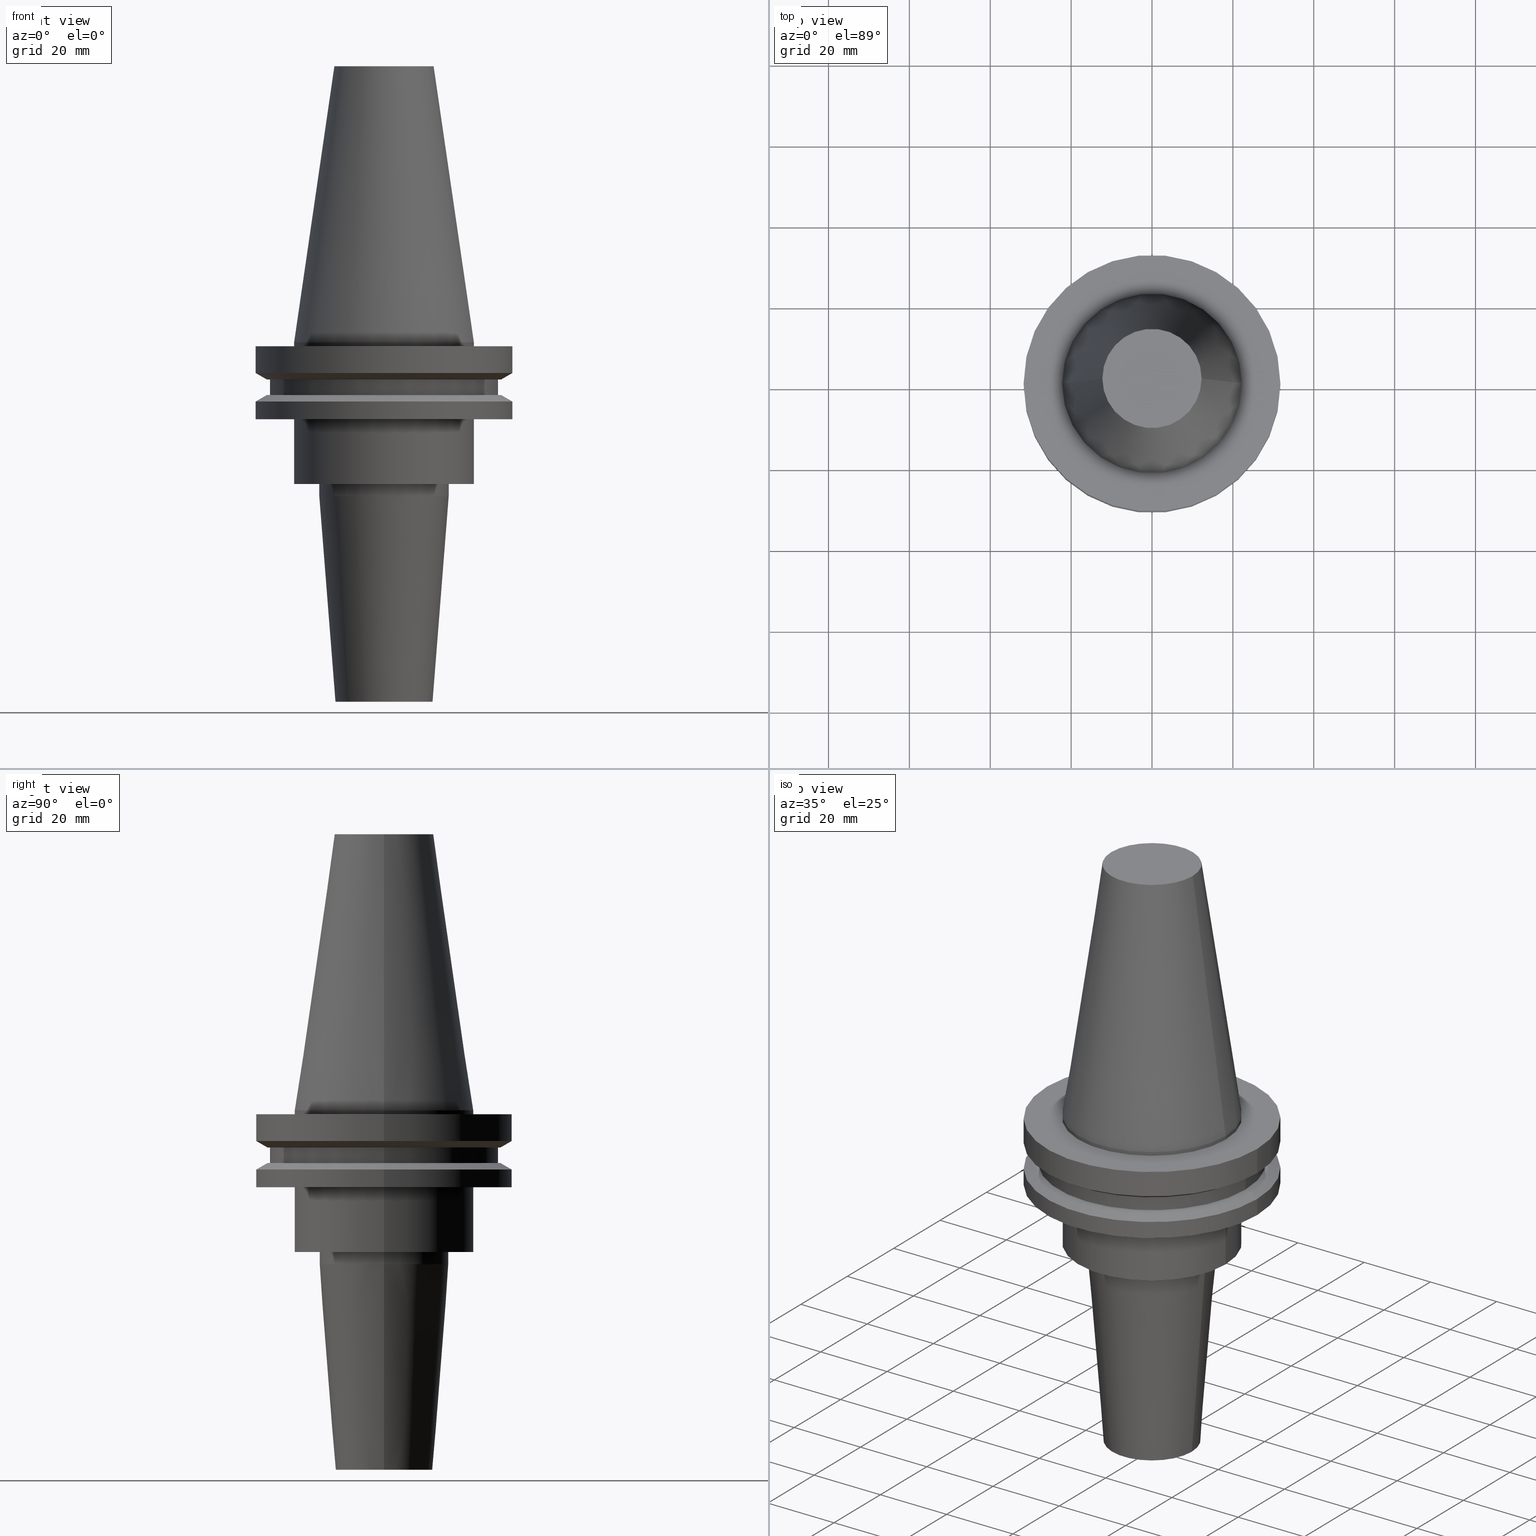
[diagram: canonical four-view strip — front | top / right | iso, engineering-drawing reading convention]
A machine part, canonical four-view strip (front | top / right | iso — engineering-drawing reading convention). The complete STEP part file that produces these views, byte-faithful:
ISO-10303-21;
HEADER;
FILE_DESCRIPTION (( 'STEP AP203' ),
    '1' );
FILE_NAME ('BCV40-SF_375-3_5.STEP',
    '2022-02-23T17:22:03',
    ( '' ),
    ( '' ),
    'SwSTEP 2.0',
    'SolidWorks 2021',
    '' );
FILE_SCHEMA (( 'CONFIG_CONTROL_DESIGN' ));
ENDSEC;

DATA;
#1 = EDGE_CURVE ( 'NONE', #531, #455, #358, .T. ) ;
#2 = DIRECTION ( 'NONE',  ( -0.000000000000000000, -0.000000000000000000, 1.000000000000000000 ) ) ;
#3 = CARTESIAN_POINT ( 'NONE',  ( -28.97919780457007732, 3.718590885307660666E-15, -9.205000000000005400 ) ) ;
#4 = ORIENTED_EDGE ( 'NONE', *, *, #646, .T. ) ;
#5 = DESIGN_CONTEXT ( 'detailed design', #517, 'design' ) ;
#6 = CARTESIAN_POINT ( 'NONE',  ( 0.000000000000000000, 0.000000000000000000, -57.89999999999999147 ) ) ;
#7 = DIRECTION ( 'NONE',  ( 1.000000000000000000, 0.000000000000000000, 0.000000000000000000 ) ) ;
#8 = ORIENTED_EDGE ( 'NONE', *, *, #459, .F. ) ;
#9 = DIRECTION ( 'NONE',  ( -0.000000000000000000, -0.000000000000000000, 1.000000000000000000 ) ) ;
#10 = CARTESIAN_POINT ( 'NONE',  ( -16.00000000000000000, 1.959434878635765131E-15, -35.04999999999999716 ) ) ;
#11 = LOCAL_TIME ( 11, 22, 3.000000000000000000, #51 ) ;
#12 = CIRCLE ( 'NONE', #123, 31.75000000000000000 ) ;
#13 = CARTESIAN_POINT ( 'NONE',  ( 28.97919780457007732, 0.000000000000000000, -9.205000000000005400 ) ) ;
#14 = LINE ( 'NONE', #468, #513 ) ;
#15 = VECTOR ( 'NONE', #388, 1000.000000000000000 ) ;
#16 = ORIENTED_EDGE ( 'NONE', *, *, #608, .F. ) ;
#17 =( NAMED_UNIT ( * ) SI_UNIT ( $, .STERADIAN. ) SOLID_ANGLE_UNIT ( ) );
#18 = DIRECTION ( 'NONE',  ( 1.000000000000000000, 0.000000000000000000, 0.000000000000000000 ) ) ;
#19 = DIRECTION ( 'NONE',  ( 1.000000000000000000, 0.000000000000000000, 0.000000000000000000 ) ) ;
#20 = ORIENTED_EDGE ( 'NONE', *, *, #41, .F. ) ;
#21 = DIRECTION ( 'NONE',  ( -0.000000000000000000, -0.000000000000000000, 1.000000000000000000 ) ) ;
#22 = AXIS2_PLACEMENT_3D ( 'NONE', #370, #28, #299 ) ;
#23 = FACE_OUTER_BOUND ( 'NONE', #40, .T. ) ;
#24 = ORIENTED_EDGE ( 'NONE', *, *, #492, .F. ) ;
#25 = AXIS2_PLACEMENT_3D ( 'NONE', #709, #353, #815 ) ;
#26 = FACE_BOUND ( 'NONE', #606, .T. ) ;
#27 = EDGE_CURVE ( 'NONE', #819, #315, #668, .T. ) ;
#28 = DIRECTION ( 'NONE',  ( -0.000000000000000000, -0.000000000000000000, 1.000000000000000000 ) ) ;
#29 = AXIS2_PLACEMENT_3D ( 'NONE', #778, #720, #453 ) ;
#30 = VERTEX_POINT ( 'NONE', #605 ) ;
#31 = EDGE_CURVE ( 'NONE', #502, #784, #108, .T. ) ;
#32 = CALENDAR_DATE ( 2022, 23, 2 ) ;
#33 = VECTOR ( 'NONE', #70, 1000.000000000000000 ) ;
#34 = LINE ( 'NONE', #38, #718 ) ;
#35 = DIRECTION ( 'NONE',  ( 0.000000000000000000, -0.000000000000000000, 1.000000000000000000 ) ) ;
#36 = ORIENTED_EDGE ( 'NONE', *, *, #670, .F. ) ;
#37 = APPROVAL_ROLE ( '' ) ;
#38 = CARTESIAN_POINT ( 'NONE',  ( -31.75000000000000000, 0.000000000000000000, -14.65472339340266572 ) ) ;
#39 = DIRECTION ( 'NONE',  ( 1.000000000000000000, 0.000000000000000000, 0.000000000000000000 ) ) ;
#40 = EDGE_LOOP ( 'NONE', ( #798, #450, #807, #621 ) ) ;
#41 = EDGE_CURVE ( 'NONE', #229, #67, #177, .T. ) ;
#42 = AXIS2_PLACEMENT_3D ( 'NONE', #256, #780, #44 ) ;
#43 = CIRCLE ( 'NONE', #743, 22.22499999999999787 ) ;
#44 = DIRECTION ( 'NONE',  ( 1.000000000000000000, 0.000000000000000000, 0.000000000000000000 ) ) ;
#45 = FACE_OUTER_BOUND ( 'NONE', #452, .T. ) ;
#46 = ORIENTED_EDGE ( 'NONE', *, *, #31, .F. ) ;
#47 = VECTOR ( 'NONE', #643, 1000.000000000000000 ) ;
#48 = ADVANCED_FACE ( 'NONE', ( #733 ), #801, .T. ) ;
#49 = CARTESIAN_POINT ( 'NONE',  ( 0.000000000000000000, 0.000000000000000000, 0.000000000000000000 ) ) ;
#50 = VERTEX_POINT ( 'NONE', #534 ) ;
#51 = COORDINATED_UNIVERSAL_TIME_OFFSET ( 6, 0, .BEHIND. ) ;
#52 = DIRECTION ( 'NONE',  ( 0.000000000000000000, 0.000000000000000000, -1.000000000000000000 ) ) ;
#53 = ORIENTED_EDGE ( 'NONE', *, *, #146, .T. ) ;
#54 = PRODUCT_DEFINITION_SHAPE ( 'NONE', 'NONE',  #372 ) ;
#55 = AXIS2_PLACEMENT_3D ( 'NONE', #151, #303, #703 ) ;
#56 = CIRCLE ( 'NONE', #540, 22.22500000000000142 ) ;
#57 = AXIS2_PLACEMENT_3D ( 'NONE', #735, #9, #280 ) ;
#58 = FACE_OUTER_BOUND ( 'NONE', #181, .T. ) ;
#59 = ADVANCED_FACE ( 'NONE', ( #215 ), #851, .T. ) ;
#60 = ORIENTED_EDGE ( 'NONE', *, *, #463, .T. ) ;
#61 = ADVANCED_FACE ( 'NONE', ( #333, #130 ), #676, .F. ) ;
#62 = DIRECTION ( 'NONE',  ( 1.000000000000000000, 0.000000000000000000, 0.000000000000000000 ) ) ;
#63 = VERTEX_POINT ( 'NONE', #10 ) ;
#64 = CARTESIAN_POINT ( 'NONE',  ( 0.000000000000000000, 0.000000000000000000, 0.000000000000000000 ) ) ;
#65 = CONICAL_SURFACE ( 'NONE', #552, 31.75000000000000000, 1.047197551196597853 ) ;
#66 = CARTESIAN_POINT ( 'NONE',  ( 0.000000000000000000, 0.000000000000000000, -88.89999999999999147 ) ) ;
#67 = VERTEX_POINT ( 'NONE', #80 ) ;
#68 = DIRECTION ( 'NONE',  ( -0.000000000000000000, -0.000000000000000000, 1.000000000000000000 ) ) ;
#69 = AXIS2_PLACEMENT_3D ( 'NONE', #599, #464, #19 ) ;
#70 = DIRECTION ( 'NONE',  ( -0.000000000000000000, -0.000000000000000000, 1.000000000000000000 ) ) ;
#71 = CIRCLE ( 'NONE', #122, 16.00000000000000000 ) ;
#72 = DIRECTION ( 'NONE',  ( -0.000000000000000000, -0.000000000000000000, 1.000000000000000000 ) ) ;
#73 = DIRECTION ( 'NONE',  ( 1.000000000000000000, 0.000000000000000000, 0.000000000000000000 ) ) ;
#74 = CARTESIAN_POINT ( 'NONE',  ( 0.000000000000000000, 0.000000000000000000, -19.04999999999999716 ) ) ;
#75 = ORIENTED_EDGE ( 'NONE', *, *, #155, .F. ) ;
#76 = DIRECTION ( 'NONE',  ( 0.000000000000000000, 0.000000000000000000, -1.000000000000000000 ) ) ;
#77 = CARTESIAN_POINT ( 'NONE',  ( -28.17999999999999972, 3.451054679997241634E-15, -9.204999999999991189 ) ) ;
#78 = ORIENTED_EDGE ( 'NONE', *, *, #648, .F. ) ;
#79 = CARTESIAN_POINT ( 'NONE',  ( -22.22500000000000142, 2.721777511104992849E-15, -1.000000000000000888 ) ) ;
#80 = CARTESIAN_POINT ( 'NONE',  ( -31.74999999999999289, 3.888253587292845687E-15, -19.04999999999999716 ) ) ;
#81 = AXIS2_PLACEMENT_3D ( 'NONE', #852, #604, #479 ) ;
#82 = VERTEX_POINT ( 'NONE', #3 ) ;
#83 = LINE ( 'NONE', #618, #279 ) ;
#84 = PLANE ( 'NONE',  #833 ) ;
#85 = CARTESIAN_POINT ( 'NONE',  ( 0.000000000000000000, 0.000000000000000000, -14.65472339340266572 ) ) ;
#86 = VERTEX_POINT ( 'NONE', #401 ) ;
#87 = DIRECTION ( 'NONE',  ( 1.000000000000000000, 0.000000000000000000, 0.000000000000000000 ) ) ;
#88 = CARTESIAN_POINT ( 'NONE',  ( 0.000000000000000000, 0.000000000000000000, -9.205000000000005400 ) ) ;
#89 = DIRECTION ( 'NONE',  ( -0.000000000000000000, -0.000000000000000000, 1.000000000000000000 ) ) ;
#90 = EDGE_LOOP ( 'NONE', ( #445, #317, #773, #406 ) ) ;
#91 = CARTESIAN_POINT ( 'NONE',  ( 31.75000000000000000, 0.000000000000000000, -14.65472339340266572 ) ) ;
#92 = EDGE_CURVE ( 'NONE', #209, #531, #341, .T. ) ;
#93 = DIRECTION ( 'NONE',  ( -0.000000000000000000, -0.000000000000000000, 1.000000000000000000 ) ) ;
#94 = CARTESIAN_POINT ( 'NONE',  ( 0.000000000000000000, 12.00000000000000000, -88.89999999999999147 ) ) ;
#95 = EDGE_LOOP ( 'NONE', ( #524, #347 ) ) ;
#96 = PERSON ( 'UNSPECIFIED', 'UNSPECIFIED', 'UNSPECIFIED', ('UNSPECIFIED'), ('UNSPECIFIED'), ('UNSPECIFIED') ) ;
#97 = DIRECTION ( 'NONE',  ( 1.000000000000000000, 0.000000000000000000, 0.000000000000000000 ) ) ;
#98 = CARTESIAN_POINT ( 'NONE',  ( -22.22500000000000142, 2.721777511104992849E-15, 68.25000000000000000 ) ) ;
#99 = VERTEX_POINT ( 'NONE', #480 ) ;
#100 = DATE_TIME_ROLE ( 'creation_date' ) ;
#101 = DIRECTION ( 'NONE',  ( 1.000000000000000000, 0.000000000000000000, 0.000000000000000000 ) ) ;
#102 = PLANE ( 'NONE',  #622 ) ;
#103 = ADVANCED_FACE ( 'NONE', ( #405, #201 ), #282, .F. ) ;
#104 = EDGE_LOOP ( 'NONE', ( #854, #734, #569, #588 ) ) ;
#105 = PERSON_AND_ORGANIZATION_ROLE ( 'creator' ) ;
#106 = CARTESIAN_POINT ( 'NONE',  ( 0.000000000000000000, 0.000000000000000000, 68.25000000000000000 ) ) ;
#107 = ORIENTED_EDGE ( 'NONE', *, *, #1, .T. ) ;
#108 = CIRCLE ( 'NONE', #69, 22.22500000000000142 ) ;
#109 = PERSON_AND_ORGANIZATION ( #96, #431 ) ;
#110 = CIRCLE ( 'NONE', #164, 28.17999999999999972 ) ;
#111 = DIRECTION ( 'NONE',  ( 1.000000000000000000, 0.000000000000000000, 0.000000000000000000 ) ) ;
#112 = EDGE_LOOP ( 'NONE', ( #652, #435 ) ) ;
#113 = COORDINATED_UNIVERSAL_TIME_OFFSET ( 6, 0, .BEHIND. ) ;
#114 = CIRCLE ( 'NONE', #335, 12.00000000000000000 ) ;
#115 = CARTESIAN_POINT ( 'NONE',  ( 28.17999999999999972, 0.000000000000000000, -13.05499999999999794 ) ) ;
#116 = ORIENTED_EDGE ( 'NONE', *, *, #190, .F. ) ;
#117 = ADVANCED_FACE ( 'NONE', ( #790 ), #624, .T. ) ;
#118 = CARTESIAN_POINT ( 'NONE',  ( 0.000000000000000000, 0.000000000000000000, -88.89999999999999147 ) ) ;
#119 = CARTESIAN_POINT ( 'NONE',  ( -22.22500000000000142, 2.721777511104992849E-15, 68.25000000000000000 ) ) ;
#120 = CC_DESIGN_DATE_AND_TIME_ASSIGNMENT ( #631, #100, ( #372 ) ) ;
#121 = VERTEX_POINT ( 'NONE', #77 ) ;
#122 = AXIS2_PLACEMENT_3D ( 'NONE', #551, #268, #489 ) ;
#123 = AXIS2_PLACEMENT_3D ( 'NONE', #490, #292, #573 ) ;
#124 = DIRECTION ( 'NONE',  ( 1.000000000000000000, 0.000000000000000000, 0.000000000000000000 ) ) ;
#125 = ORIENTED_EDGE ( 'NONE', *, *, #667, .T. ) ;
#126 = CARTESIAN_POINT ( 'NONE',  ( 0.000000000000000000, 0.000000000000000000, -1.000000000000000888 ) ) ;
#127 = ORIENTED_EDGE ( 'NONE', *, *, #469, .F. ) ;
#128 = EDGE_CURVE ( 'NONE', #86, #219, #14, .T. ) ;
#129 = CARTESIAN_POINT ( 'NONE',  ( 0.000000000000000000, 0.000000000000000000, -9.204999999999991189 ) ) ;
#130 = FACE_OUTER_BOUND ( 'NONE', #683, .T. ) ;
#131 = CONICAL_SURFACE ( 'NONE', #278, 12.00000000000000000, 0.07853981633973657062 ) ;
#132 = CC_DESIGN_PERSON_AND_ORGANIZATION_ASSIGNMENT ( #383, #754, ( #393 ) ) ;
#133 = DIRECTION ( 'NONE',  ( 1.000000000000000000, 0.000000000000000000, 0.000000000000000000 ) ) ;
#134 = DIRECTION ( 'NONE',  ( -0.000000000000000000, -0.000000000000000000, 1.000000000000000000 ) ) ;
#135 = ORIENTED_EDGE ( 'NONE', *, *, #594, .F. ) ;
#136 = EDGE_CURVE ( 'NONE', #845, #581, #727, .T. ) ;
#137 = CARTESIAN_POINT ( 'NONE',  ( -31.75000000000000000, 3.888253587292846476E-15, -1.000000000000000888 ) ) ;
#138 = CARTESIAN_POINT ( 'NONE',  ( 0.000000000000000000, 0.000000000000000000, -9.205000000000005400 ) ) ;
#139 = DIRECTION ( 'NONE',  ( -1.000000000000000000, 0.000000000000000000, 0.000000000000000000 ) ) ;
#140 = DIRECTION ( 'NONE',  ( 1.000000000000000000, 0.000000000000000000, 0.000000000000000000 ) ) ;
#141 = CC_DESIGN_PERSON_AND_ORGANIZATION_ASSIGNMENT ( #240, #701, ( #393 ) ) ;
#142 = VERTEX_POINT ( 'NONE', #681 ) ;
#143 = CIRCLE ( 'NONE', #262, 12.27178102086201150 ) ;
#144 = CARTESIAN_POINT ( 'NONE',  ( 28.17999999999999972, 0.000000000000000000, 68.25000000000000000 ) ) ;
#145 = DIRECTION ( 'NONE',  ( -0.000000000000000000, -0.000000000000000000, 1.000000000000000000 ) ) ;
#146 = EDGE_CURVE ( 'NONE', #581, #845, #841, .T. ) ;
#147 = APPROVAL_PERSON_ORGANIZATION ( #287, #454, #37 ) ;
#148 = CONICAL_SURFACE ( 'NONE', #457, 31.75000000000000000, 1.047197551196597853 ) ;
#149 = ORIENTED_EDGE ( 'NONE', *, *, #288, .T. ) ;
#150 = FACE_OUTER_BOUND ( 'NONE', #700, .T. ) ;
#151 = CARTESIAN_POINT ( 'NONE',  ( 0.000000000000000000, 0.000000000000000000, 68.25000000000000000 ) ) ;
#152 = ADVANCED_FACE ( 'NONE', ( #290 ), #728, .T. ) ;
#153 = VERTEX_POINT ( 'NONE', #564 ) ;
#154 = DIRECTION ( 'NONE',  ( 0.000000000000000000, 0.000000000000000000, 1.000000000000000000 ) ) ;
#155 = EDGE_CURVE ( 'NONE', #82, #590, #629, .T. ) ;
#156 = CARTESIAN_POINT ( 'NONE',  ( -22.22499999999999787, 2.721777511104992454E-15, -35.04999999999999716 ) ) ;
#157 = FACE_OUTER_BOUND ( 'NONE', #396, .T. ) ;
#158 = ORIENTED_EDGE ( 'NONE', *, *, #848, .T. ) ;
#159 = CLOSED_SHELL ( 'NONE', ( #270, #755, #545, #152, #223, #117, #750, #695, #336, #48, #182, #504, #494, #789, #235, #103, #803, #447, #516, #274, #715, #59, #708, #61, #390, #423, #197, #204, #369, #259 ) ) ;
#160 = DIRECTION ( 'NONE',  ( 1.000000000000000000, 0.000000000000000000, 0.000000000000000000 ) ) ;
#161 = CARTESIAN_POINT ( 'NONE',  ( -16.00000000000000000, 1.959434878635765131E-15, -38.07518105529580055 ) ) ;
#162 = ORIENTED_EDGE ( 'NONE', *, *, #251, .T. ) ;
#163 = CC_DESIGN_APPROVAL ( #454, ( #372 ) ) ;
#164 = AXIS2_PLACEMENT_3D ( 'NONE', #744, #440, #628 ) ;
#165 = EDGE_CURVE ( 'NONE', #814, #261, #429, .T. ) ;
#166 = CARTESIAN_POINT ( 'NONE',  ( -28.17999999999999972, 3.451054679997241634E-15, -13.05499999999999794 ) ) ;
#167 = CARTESIAN_POINT ( 'NONE',  ( 31.74999999999999289, 0.000000000000000000, -19.04999999999999716 ) ) ;
#168 = ORIENTED_EDGE ( 'NONE', *, *, #41, .T. ) ;
#169 = DATE_AND_TIME ( #446, #263 ) ;
#170 = AXIS2_PLACEMENT_3D ( 'NONE', #49, #192, #583 ) ;
#171 = DIRECTION ( 'NONE',  ( 1.000000000000000000, 0.000000000000000000, 0.000000000000000000 ) ) ;
#172 = DIRECTION ( 'NONE',  ( 1.000000000000000000, 0.000000000000000000, 0.000000000000000000 ) ) ;
#173 = EDGE_LOOP ( 'NONE', ( #627, #753, #252, #78 ) ) ;
#174 = CARTESIAN_POINT ( 'NONE',  ( 22.22500000000000142, 0.000000000000000000, -1.000000000000000888 ) ) ;
#175 = DIRECTION ( 'NONE',  ( -0.000000000000000000, -0.000000000000000000, 1.000000000000000000 ) ) ;
#176 = EDGE_LOOP ( 'NONE', ( #271, #717, #309, #300 ) ) ;
#177 = CIRCLE ( 'NONE', #253, 31.74999999999999289 ) ;
#178 = PERSON_AND_ORGANIZATION ( #96, #431 ) ;
#179 = CARTESIAN_POINT ( 'NONE',  ( 31.75000000000000000, 0.000000000000000000, -7.605276606597335842 ) ) ;
#180 = LINE ( 'NONE', #119, #684 ) ;
#181 = EDGE_LOOP ( 'NONE', ( #238, #596, #840, #234 ) ) ;
#182 = ADVANCED_FACE ( 'NONE', ( #362 ), #402, .T. ) ;
#183 = LINE ( 'NONE', #451, #465 ) ;
#184 = ORIENTED_EDGE ( 'NONE', *, *, #832, .T. ) ;
#185 = AXIS2_PLACEMENT_3D ( 'NONE', #337, #542, #139 ) ;
#186 = CARTESIAN_POINT ( 'NONE',  ( 0.000000000000000000, 0.000000000000000000, 0.000000000000000000 ) ) ;
#187 = ORIENTED_EDGE ( 'NONE', *, *, #92, .T. ) ;
#188 = VECTOR ( 'NONE', #375, 1000.000000000000000 ) ;
#189 = AXIS2_PLACEMENT_3D ( 'NONE', #747, #361, #812 ) ;
#190 = EDGE_CURVE ( 'NONE', #819, #219, #572, .T. ) ;
#191 = VECTOR ( 'NONE', #200, 1000.000000000000000 ) ;
#192 = DIRECTION ( 'NONE',  ( -0.000000000000000000, -0.000000000000000000, 1.000000000000000000 ) ) ;
#193 = ORIENTED_EDGE ( 'NONE', *, *, #417, .F. ) ;
#194 = CYLINDRICAL_SURFACE ( 'NONE', #574, 31.75000000000000000 ) ;
#195 = LINE ( 'NONE', #144, #320 ) ;
#196 = EDGE_LOOP ( 'NONE', ( #127, #187, #107, #8 ) ) ;
#197 = ADVANCED_FACE ( 'NONE', ( #491 ), #131, .T. ) ;
#198 = CARTESIAN_POINT ( 'NONE',  ( -12.27178102086201150, 0.000000000000000000, 68.25000000000000000 ) ) ;
#199 = VECTOR ( 'NONE', #284, 1000.000000000000000 ) ;
#200 = DIRECTION ( 'NONE',  ( -0.000000000000000000, -0.000000000000000000, 1.000000000000000000 ) ) ;
#201 = FACE_BOUND ( 'NONE', #276, .T. ) ;
#202 = ORIENTED_EDGE ( 'NONE', *, *, #411, .T. ) ;
#203 = AXIS2_PLACEMENT_3D ( 'NONE', #138, #736, #140 ) ;
#204 = ADVANCED_FACE ( 'NONE', ( #559, #507 ), #102, .F. ) ;
#205 = CONICAL_SURFACE ( 'NONE', #827, 12.00000000000000000, 0.07853981633973657062 ) ;
#206 = CARTESIAN_POINT ( 'NONE',  ( 0.000000000000000000, 0.000000000000000000, -19.04999999999999716 ) ) ;
#207 = CC_DESIGN_APPROVAL ( #821, ( #393 ) ) ;
#208 = DIRECTION ( 'NONE',  ( -0.000000000000000000, -0.000000000000000000, 1.000000000000000000 ) ) ;
#209 = VERTEX_POINT ( 'NONE', #233 ) ;
#210 = EDGE_CURVE ( 'NONE', #814, #342, #686, .T. ) ;
#211 = AXIS2_PLACEMENT_3D ( 'NONE', #6, #265, #671 ) ;
#212 = ADVANCED_BREP_SHAPE_REPRESENTATION ( 'BCV40-SF_375-3_5', ( #837, #692 ), #607 ) ;
#213 = EDGE_CURVE ( 'NONE', #776, #99, #496, .T. ) ;
#214 = DIRECTION ( 'NONE',  ( 0.000000000000000000, 0.000000000000000000, -1.000000000000000000 ) ) ;
#215 = FACE_OUTER_BOUND ( 'NONE', #352, .T. ) ;
#216 = VERTEX_POINT ( 'NONE', #433 ) ;
#217 = DIRECTION ( 'NONE',  ( -0.000000000000000000, -0.000000000000000000, 1.000000000000000000 ) ) ;
#218 = CARTESIAN_POINT ( 'NONE',  ( 0.000000000000000000, 0.000000000000000000, -9.205000000000005400 ) ) ;
#219 = VERTEX_POINT ( 'NONE', #161 ) ;
#220 = AXIS2_PLACEMENT_3D ( 'NONE', #699, #765, #172 ) ;
#221 = AXIS2_PLACEMENT_3D ( 'NONE', #725, #72, #338 ) ;
#222 = CARTESIAN_POINT ( 'NONE',  ( 0.000000000000000000, 0.000000000000000000, 0.000000000000000000 ) ) ;
#223 = ADVANCED_FACE ( 'NONE', ( #23 ), #620, .T. ) ;
#224 = CYLINDRICAL_SURFACE ( 'NONE', #312, 28.17999999999999972 ) ;
#225 = ORIENTED_EDGE ( 'NONE', *, *, #796, .T. ) ;
#226 = CARTESIAN_POINT ( 'NONE',  ( 0.000000000000000000, 0.000000000000000000, 0.000000000000000000 ) ) ;
#227 = CARTESIAN_POINT ( 'NONE',  ( 0.000000000000000000, 0.000000000000000000, -13.05499999999999794 ) ) ;
#228 = DIRECTION ( 'NONE',  ( 1.000000000000000000, 0.000000000000000000, 0.000000000000000000 ) ) ;
#229 = VERTEX_POINT ( 'NONE', #167 ) ;
#230 = DIRECTION ( 'NONE',  ( -0.000000000000000000, -0.000000000000000000, 1.000000000000000000 ) ) ;
#231 = CONICAL_SURFACE ( 'NONE', #185, 22.22500000000000142, 0.1448138465474119174 ) ;
#232 = FACE_OUTER_BOUND ( 'NONE', #802, .T. ) ;
#233 = CARTESIAN_POINT ( 'NONE',  ( -4.762500000000000178, 5.832380380939270108E-16, -88.89999999999999147 ) ) ;
#234 = ORIENTED_EDGE ( 'NONE', *, *, #832, .F. ) ;
#235 = ADVANCED_FACE ( 'NONE', ( #45 ), #694, .T. ) ;
#236 = LINE ( 'NONE', #619, #797 ) ;
#237 = DIRECTION ( 'NONE',  ( -0.000000000000000000, -0.000000000000000000, 1.000000000000000000 ) ) ;
#238 = ORIENTED_EDGE ( 'NONE', *, *, #428, .F. ) ;
#239 = CC_DESIGN_APPROVAL ( #354, ( #678 ) ) ;
#240 = PERSON_AND_ORGANIZATION ( #96, #431 ) ;
#241 = AXIS2_PLACEMENT_3D ( 'NONE', #764, #557, #367 ) ;
#242 = CARTESIAN_POINT ( 'NONE',  ( 0.000000000000000000, 0.000000000000000000, -35.04999999999999716 ) ) ;
#243 = PLANE ( 'NONE',  #526 ) ;
#244 = EDGE_LOOP ( 'NONE', ( #357, #704, #258, #761 ) ) ;
#245 = FACE_BOUND ( 'NONE', #477, .T. ) ;
#246 = DIRECTION ( 'NONE',  ( 1.000000000000000000, 0.000000000000000000, 0.000000000000000000 ) ) ;
#247 = ORIENTED_EDGE ( 'NONE', *, *, #740, .T. ) ;
#248 = PERSON_AND_ORGANIZATION ( #96, #431 ) ;
#249 = DIRECTION ( 'NONE',  ( -0.000000000000000000, -0.000000000000000000, 1.000000000000000000 ) ) ;
#250 = CARTESIAN_POINT ( 'NONE',  ( 16.00000000000000000, 0.000000000000000000, -35.04999999999999716 ) ) ;
#251 = EDGE_CURVE ( 'NONE', #657, #216, #830, .T. ) ;
#252 = ORIENTED_EDGE ( 'NONE', *, *, #578, .T. ) ;
#253 = AXIS2_PLACEMENT_3D ( 'NONE', #74, #285, #412 ) ;
#254 = CARTESIAN_POINT ( 'NONE',  ( -16.00000000000000000, 1.959434878635765131E-15, 0.000000000000000000 ) ) ;
#255 = ORIENTED_EDGE ( 'NONE', *, *, #417, .T. ) ;
#256 = CARTESIAN_POINT ( 'NONE',  ( 0.000000000000000000, 0.000000000000000000, -7.605276606597335842 ) ) ;
#257 = DIRECTION ( 'NONE',  ( -0.000000000000000000, -0.000000000000000000, 1.000000000000000000 ) ) ;
#258 = ORIENTED_EDGE ( 'NONE', *, *, #844, .T. ) ;
#259 = ADVANCED_FACE ( 'NONE', ( #157 ), #243, .F. ) ;
#260 = CARTESIAN_POINT ( 'NONE',  ( 12.00000000000000000, 0.000000000000000000, -88.89999999999999147 ) ) ;
#261 = VERTEX_POINT ( 'NONE', #823 ) ;
#262 = AXIS2_PLACEMENT_3D ( 'NONE', #106, #237, #39 ) ;
#263 = LOCAL_TIME ( 11, 22, 3.000000000000000000, #512 ) ;
#264 = CIRCLE ( 'NONE', #57, 28.17999999999999972 ) ;
#265 = DIRECTION ( 'NONE',  ( -0.000000000000000000, -0.000000000000000000, 1.000000000000000000 ) ) ;
#266 = EDGE_CURVE ( 'NONE', #261, #814, #143, .T. ) ;
#267 = ORIENTED_EDGE ( 'NONE', *, *, #411, .F. ) ;
#268 = DIRECTION ( 'NONE',  ( -0.000000000000000000, -0.000000000000000000, 1.000000000000000000 ) ) ;
#269 = DIRECTION ( 'NONE',  ( 1.000000000000000000, 0.000000000000000000, 0.000000000000000000 ) ) ;
#270 = ADVANCED_FACE ( 'NONE', ( #500 ), #760, .F. ) ;
#271 = ORIENTED_EDGE ( 'NONE', *, *, #561, .F. ) ;
#272 = EDGE_LOOP ( 'NONE', ( #791, #640 ) ) ;
#273 = CARTESIAN_POINT ( 'NONE',  ( 0.000000000000000000, 12.27178102086201150, 68.25000000000000000 ) ) ;
#274 = ADVANCED_FACE ( 'NONE', ( #311 ), #224, .T. ) ;
#275 = CARTESIAN_POINT ( 'NONE',  ( 16.00000000000000000, 0.000000000000000000, 0.000000000000000000 ) ) ;
#276 = EDGE_LOOP ( 'NONE', ( #742, #339 ) ) ;
#277 = EDGE_CURVE ( 'NONE', #30, #845, #843, .T. ) ;
#278 = AXIS2_PLACEMENT_3D ( 'NONE', #487, #626, #689 ) ;
#279 = VECTOR ( 'NONE', #484, 1000.000000000000000 ) ;
#280 = DIRECTION ( 'NONE',  ( 1.000000000000000000, 0.000000000000000000, 0.000000000000000000 ) ) ;
#281 = AXIS2_PLACEMENT_3D ( 'NONE', #419, #632, #685 ) ;
#282 = PLANE ( 'NONE',  #636 ) ;
#283 = ORIENTED_EDGE ( 'NONE', *, *, #682, .T. ) ;
#284 = DIRECTION ( 'NONE',  ( -0.000000000000000000, -0.000000000000000000, 1.000000000000000000 ) ) ;
#285 = DIRECTION ( 'NONE',  ( -0.000000000000000000, -0.000000000000000000, 1.000000000000000000 ) ) ;
#286 = EDGE_LOOP ( 'NONE', ( #16, #443, #381, #184 ) ) ;
#287 = PERSON_AND_ORGANIZATION ( #96, #431 ) ;
#288 = EDGE_CURVE ( 'NONE', #539, #99, #368, .T. ) ;
#289 = DIRECTION ( 'NONE',  ( -0.000000000000000000, -0.000000000000000000, 1.000000000000000000 ) ) ;
#290 = FACE_OUTER_BOUND ( 'NONE', #544, .T. ) ;
#291 = EDGE_LOOP ( 'NONE', ( #135, #46 ) ) ;
#292 = DIRECTION ( 'NONE',  ( -0.000000000000000000, -0.000000000000000000, 1.000000000000000000 ) ) ;
#293 = DIRECTION ( 'NONE',  ( -1.000000000000000000, 0.000000000000000000, 0.000000000000000000 ) ) ;
#294 = CC_DESIGN_PERSON_AND_ORGANIZATION_ASSIGNMENT ( #109, #105, ( #372 ) ) ;
#295 = ORIENTED_EDGE ( 'NONE', *, *, #442, .T. ) ;
#296 = DIRECTION ( 'NONE',  ( -0.000000000000000000, -0.000000000000000000, 1.000000000000000000 ) ) ;
#297 = AXIS2_PLACEMENT_3D ( 'NONE', #186, #391, #246 ) ;
#298 = PRODUCT ( 'BCV40-SF_375-3_5', 'BCV40-SF_375-3_5', '', ( #562 ) ) ;
#299 = DIRECTION ( 'NONE',  ( 1.000000000000000000, 0.000000000000000000, 0.000000000000000000 ) ) ;
#300 = ORIENTED_EDGE ( 'NONE', *, *, #288, .F. ) ;
#301 = CALENDAR_DATE ( 2022, 23, 2 ) ;
#302 = DIRECTION ( 'NONE',  ( 0.1443082272672999711, 1.767266086135276757E-17, -0.9895327864921755756 ) ) ;
#303 = DIRECTION ( 'NONE',  ( -0.000000000000000000, -0.000000000000000000, 1.000000000000000000 ) ) ;
#304 = ORIENTED_EDGE ( 'NONE', *, *, #432, .T. ) ;
#305 = DATE_AND_TIME ( #32, #756 ) ;
#306 = DIRECTION ( 'NONE',  ( 1.000000000000000000, 0.000000000000000000, 0.000000000000000000 ) ) ;
#307 = AXIS2_PLACEMENT_3D ( 'NONE', #356, #748, #441 ) ;
#308 = CARTESIAN_POINT ( 'NONE',  ( -22.22500000000000142, 0.000000000000000000, 0.000000000000000000 ) ) ;
#309 = ORIENTED_EDGE ( 'NONE', *, *, #213, .T. ) ;
#310 = AXIS2_PLACEMENT_3D ( 'NONE', #88, #21, #97 ) ;
#311 = FACE_OUTER_BOUND ( 'NONE', #173, .T. ) ;
#312 = AXIS2_PLACEMENT_3D ( 'NONE', #525, #710, #650 ) ;
#313 = ORIENTED_EDGE ( 'NONE', *, *, #538, .F. ) ;
#314 = CYLINDRICAL_SURFACE ( 'NONE', #29, 22.22500000000000142 ) ;
#315 = VERTEX_POINT ( 'NONE', #250 ) ;
#316 = CARTESIAN_POINT ( 'NONE',  ( 31.75000000000000000, 3.888253587292846476E-15, -14.65472339340266572 ) ) ;
#317 = ORIENTED_EDGE ( 'NONE', *, *, #346, .T. ) ;
#318 = VECTOR ( 'NONE', #817, 1000.000000000000000 ) ;
#319 = AXIS2_PLACEMENT_3D ( 'NONE', #242, #505, #171 ) ;
#320 = VECTOR ( 'NONE', #462, 1000.000000000000000 ) ;
#321 = LINE ( 'NONE', #260, #774 ) ;
#322 = CIRCLE ( 'NONE', #763, 31.75000000000000000 ) ;
#323 = EDGE_CURVE ( 'NONE', #86, #153, #114, .T. ) ;
#324 = EDGE_LOOP ( 'NONE', ( #168, #60, #810, #329 ) ) ;
#325 = CARTESIAN_POINT ( 'NONE',  ( 0.000000000000000000, 0.000000000000000000, 68.25000000000000000 ) ) ;
#326 = ORIENTED_EDGE ( 'NONE', *, *, #665, .T. ) ;
#327 = LINE ( 'NONE', #532, #363 ) ;
#328 = DIRECTION ( 'NONE',  ( 1.000000000000000000, 0.000000000000000000, 0.000000000000000000 ) ) ;
#329 = ORIENTED_EDGE ( 'NONE', *, *, #844, .F. ) ;
#330 = APPLICATION_PROTOCOL_DEFINITION ( 'international standard', 'config_control_design', 1994, #579 ) ;
#331 = CIRCLE ( 'NONE', #319, 16.00000000000000000 ) ;
#332 = CARTESIAN_POINT ( 'NONE',  ( -31.75000000000000000, 3.888253587292846476E-15, 68.25000000000000000 ) ) ;
#333 = FACE_BOUND ( 'NONE', #291, .T. ) ;
#334 = ORIENTED_EDGE ( 'NONE', *, *, #266, .F. ) ;
#335 = AXIS2_PLACEMENT_3D ( 'NONE', #458, #175, #62 ) ;
#336 = ADVANCED_FACE ( 'NONE', ( #395 ), #772, .T. ) ;
#337 = CARTESIAN_POINT ( 'NONE',  ( 0.000000000000000000, 0.000000000000000000, 0.000000000000000000 ) ) ;
#338 = DIRECTION ( 'NONE',  ( 1.000000000000000000, 0.000000000000000000, 0.000000000000000000 ) ) ;
#339 = ORIENTED_EDGE ( 'NONE', *, *, #818, .T. ) ;
#340 = DIRECTION ( 'NONE',  ( 1.000000000000000000, 0.000000000000000000, 0.000000000000000000 ) ) ;
#341 = LINE ( 'NONE', #611, #691 ) ;
#342 = VERTEX_POINT ( 'NONE', #846 ) ;
#343 = CARTESIAN_POINT ( 'NONE',  ( 0.000000000000000000, 0.000000000000000000, 0.000000000000000000 ) ) ;
#344 = CIRCLE ( 'NONE', #855, 22.22500000000000142 ) ;
#345 = DIRECTION ( 'NONE',  ( -0.07845909572783671404, 9.608468044709101226E-18, 0.9969173337331286300 ) ) ;
#346 = EDGE_CURVE ( 'NONE', #219, #63, #849, .T. ) ;
#347 = ORIENTED_EDGE ( 'NONE', *, *, #661, .F. ) ;
#348 = FACE_OUTER_BOUND ( 'NONE', #244, .T. ) ;
#349 = FACE_OUTER_BOUND ( 'NONE', #690, .T. ) ;
#350 = AXIS2_PLACEMENT_3D ( 'NONE', #449, #444, #510 ) ;
#351 = DIRECTION ( 'NONE',  ( -0.000000000000000000, -0.000000000000000000, 1.000000000000000000 ) ) ;
#352 = EDGE_LOOP ( 'NONE', ( #75, #644, #295, #24 ) ) ;
#353 = DIRECTION ( 'NONE',  ( 0.000000000000000000, -0.000000000000000000, 1.000000000000000000 ) ) ;
#354 = APPROVAL ( #641, 'UNSPECIFIED' ) ;
#355 = DIRECTION ( 'NONE',  ( -0.000000000000000000, -0.000000000000000000, 1.000000000000000000 ) ) ;
#356 = CARTESIAN_POINT ( 'NONE',  ( 0.000000000000000000, 0.000000000000000000, 68.25000000000000000 ) ) ;
#357 = ORIENTED_EDGE ( 'NONE', *, *, #463, .F. ) ;
#358 = CIRCLE ( 'NONE', #839, 4.762499999999996625 ) ;
#359 = VECTOR ( 'NONE', #752, 1000.000000000000000 ) ;
#360 = AXIS2_PLACEMENT_3D ( 'NONE', #543, #145, #415 ) ;
#361 = DIRECTION ( 'NONE',  ( -0.000000000000000000, -0.000000000000000000, 1.000000000000000000 ) ) ;
#362 = FACE_OUTER_BOUND ( 'NONE', #550, .T. ) ;
#363 = VECTOR ( 'NONE', #597, 1000.000000000000000 ) ;
#364 = EDGE_CURVE ( 'NONE', #565, #82, #746, .T. ) ;
#365 = ORIENTED_EDGE ( 'NONE', *, *, #277, .T. ) ;
#366 = APPROVAL_ROLE ( '' ) ;
#367 = DIRECTION ( 'NONE',  ( 1.000000000000000000, 0.000000000000000000, 0.000000000000000000 ) ) ;
#368 = CIRCLE ( 'NONE', #612, 31.75000000000000000 ) ;
#369 = ADVANCED_FACE ( 'NONE', ( #586 ), #523, .F. ) ;
#370 = CARTESIAN_POINT ( 'NONE',  ( 0.000000000000000000, 0.000000000000000000, -38.07518105529580055 ) ) ;
#371 = VERTEX_POINT ( 'NONE', #115 ) ;
#372 = PRODUCT_DEFINITION ( 'UNKNOWN', '', #393, #5 ) ;
#373 = APPROVAL_STATUS ( 'not_yet_approved' ) ;
#374 = DIRECTION ( 'NONE',  ( 1.000000000000000000, 0.000000000000000000, 0.000000000000000000 ) ) ;
#375 = DIRECTION ( 'NONE',  ( -0.000000000000000000, -0.000000000000000000, 1.000000000000000000 ) ) ;
#376 = ORIENTED_EDGE ( 'NONE', *, *, #646, .F. ) ;
#377 = DATE_AND_TIME ( #427, #637 ) ;
#378 = LINE ( 'NONE', #771, #664 ) ;
#379 = VECTOR ( 'NONE', #805, 1000.000000000000000 ) ;
#380 = DIRECTION ( 'NONE',  ( 0.000000000000000000, -0.000000000000000000, 1.000000000000000000 ) ) ;
#381 = ORIENTED_EDGE ( 'NONE', *, *, #210, .T. ) ;
#382 = AXIS2_PLACEMENT_3D ( 'NONE', #553, #808, #485 ) ;
#383 = PERSON_AND_ORGANIZATION ( #96, #431 ) ;
#384 = CIRCLE ( 'NONE', #81, 4.762500000000000178 ) ;
#385 = DIRECTION ( 'NONE',  ( -0.000000000000000000, -0.000000000000000000, 1.000000000000000000 ) ) ;
#386 = AXIS2_PLACEMENT_3D ( 'NONE', #398, #257, #124 ) ;
#387 = EDGE_LOOP ( 'NONE', ( #313, #392 ) ) ;
#388 = DIRECTION ( 'NONE',  ( 0.8660254037844389297, 0.000000000000000000, 0.4999999999999995004 ) ) ;
#389 = EDGE_LOOP ( 'NONE', ( #20, #413 ) ) ;
#390 = ADVANCED_FACE ( 'NONE', ( #58 ), #314, .T. ) ;
#391 = DIRECTION ( 'NONE',  ( -0.000000000000000000, -0.000000000000000000, 1.000000000000000000 ) ) ;
#392 = ORIENTED_EDGE ( 'NONE', *, *, #682, .F. ) ;
#393 = PRODUCT_DEFINITION_FORMATION_WITH_SPECIFIED_SOURCE ( 'ANY', '', #298, .NOT_KNOWN. ) ;
#394 = AXIS2_PLACEMENT_3D ( 'NONE', #227, #355, #306 ) ;
#395 = FACE_OUTER_BOUND ( 'NONE', #324, .T. ) ;
#396 = EDGE_LOOP ( 'NONE', ( #474, #603 ) ) ;
#397 = AXIS2_PLACEMENT_3D ( 'NONE', #66, #385, #328 ) ;
#398 = CARTESIAN_POINT ( 'NONE',  ( 0.000000000000000000, 0.000000000000000000, -9.205000000000005400 ) ) ;
#399 = ORIENTED_EDGE ( 'NONE', *, *, #759, .T. ) ;
#400 = PLANE ( 'NONE',  #672 ) ;
#401 = CARTESIAN_POINT ( 'NONE',  ( -12.00000000000000000, 1.714505518806294638E-15, -88.89999999999999147 ) ) ;
#402 = CONICAL_SURFACE ( 'NONE', #483, 22.22500000000000142, 0.1448138465474119174 ) ;
#403 = AXIS2_PLACEMENT_3D ( 'NONE', #218, #208, #408 ) ;
#404 = FACE_OUTER_BOUND ( 'NONE', #90, .T. ) ;
#405 = FACE_OUTER_BOUND ( 'NONE', #389, .T. ) ;
#406 = ORIENTED_EDGE ( 'NONE', *, *, #27, .F. ) ;
#407 = CYLINDRICAL_SURFACE ( 'NONE', #434, 16.00000000000000000 ) ;
#408 = DIRECTION ( 'NONE',  ( 1.000000000000000000, 0.000000000000000000, 0.000000000000000000 ) ) ;
#409 = ORIENTED_EDGE ( 'NONE', *, *, #364, .T. ) ;
#410 = DIRECTION ( 'NONE',  ( -0.000000000000000000, -0.000000000000000000, 1.000000000000000000 ) ) ;
#411 = EDGE_CURVE ( 'NONE', #153, #819, #321, .T. ) ;
#412 = DIRECTION ( 'NONE',  ( 1.000000000000000000, 0.000000000000000000, 0.000000000000000000 ) ) ;
#413 = ORIENTED_EDGE ( 'NONE', *, *, #521, .F. ) ;
#414 = CARTESIAN_POINT ( 'NONE',  ( -31.75000000000000000, 3.888253587292846476E-15, -14.65472339340266572 ) ) ;
#415 = DIRECTION ( 'NONE',  ( 1.000000000000000000, 0.000000000000000000, 0.000000000000000000 ) ) ;
#416 = ORIENTED_EDGE ( 'NONE', *, *, #670, .T. ) ;
#417 = EDGE_CURVE ( 'NONE', #219, #819, #506, .T. ) ;
#418 = VECTOR ( 'NONE', #716, 1000.000000000000000 ) ;
#419 = CARTESIAN_POINT ( 'NONE',  ( 0.000000000000000000, 0.000000000000000000, -9.204999999999991189 ) ) ;
#420 = DIRECTION ( 'NONE',  ( 1.000000000000000000, 0.000000000000000000, 0.000000000000000000 ) ) ;
#421 = ORIENTED_EDGE ( 'NONE', *, *, #136, .T. ) ;
#422 = DIRECTION ( 'NONE',  ( -0.000000000000000000, -0.000000000000000000, 1.000000000000000000 ) ) ;
#423 = ADVANCED_FACE ( 'NONE', ( #706 ), #782, .T. ) ;
#424 = CARTESIAN_POINT ( 'NONE',  ( 22.22500000000000142, 2.721777511104992849E-15, 0.000000000000000000 ) ) ;
#425 = CARTESIAN_POINT ( 'NONE',  ( 0.000000000000000000, 4.762499999999996625, -57.89999999999999147 ) ) ;
#426 = VERTEX_POINT ( 'NONE', #589 ) ;
#427 = CALENDAR_DATE ( 2022, 23, 2 ) ;
#428 = EDGE_CURVE ( 'NONE', #502, #342, #180, .T. ) ;
#429 = CIRCLE ( 'NONE', #55, 12.27178102086201150 ) ;
#430 = FACE_OUTER_BOUND ( 'NONE', #95, .T. ) ;
#431 = ORGANIZATION ( 'UNSPECIFIED', 'UNSPECIFIED', '' ) ;
#432 = EDGE_CURVE ( 'NONE', #153, #86, #546, .T. ) ;
#433 = CARTESIAN_POINT ( 'NONE',  ( -22.22500000000000142, 2.721777511104992849E-15, -19.04999999999999716 ) ) ;
#434 = AXIS2_PLACEMENT_3D ( 'NONE', #343, #217, #340 ) ;
#435 = ORIENTED_EDGE ( 'NONE', *, *, #571, .F. ) ;
#436 = PLANE ( 'NONE',  #639 ) ;
#437 = CARTESIAN_POINT ( 'NONE',  ( -28.97919780457007732, 3.548928183322474856E-15, -9.205000000000005400 ) ) ;
#438 = ORIENTED_EDGE ( 'NONE', *, *, #656, .F. ) ;
#439 = APPROVAL_DATE_TIME ( #169, #354 ) ;
#440 = DIRECTION ( 'NONE',  ( -0.000000000000000000, -0.000000000000000000, 1.000000000000000000 ) ) ;
#441 = DIRECTION ( 'NONE',  ( 1.000000000000000000, 0.000000000000000000, 0.000000000000000000 ) ) ;
#442 = EDGE_CURVE ( 'NONE', #565, #776, #647, .T. ) ;
#443 = ORIENTED_EDGE ( 'NONE', *, *, #165, .F. ) ;
#444 = DIRECTION ( 'NONE',  ( -0.000000000000000000, -0.000000000000000000, 1.000000000000000000 ) ) ;
#445 = ORIENTED_EDGE ( 'NONE', *, *, #190, .T. ) ;
#446 = CALENDAR_DATE ( 2022, 23, 2 ) ;
#447 = ADVANCED_FACE ( 'NONE', ( #834 ), #65, .T. ) ;
#448 = FACE_OUTER_BOUND ( 'NONE', #387, .T. ) ;
#449 = CARTESIAN_POINT ( 'NONE',  ( 0.000000000000000000, 0.000000000000000000, -38.07518105529580055 ) ) ;
#450 = ORIENTED_EDGE ( 'NONE', *, *, #561, .T. ) ;
#451 = CARTESIAN_POINT ( 'NONE',  ( 4.762499999999998401, 0.000000000000000000, 0.000000000000000000 ) ) ;
#452 = EDGE_LOOP ( 'NONE', ( #613, #283, #158, #766 ) ) ;
#453 = DIRECTION ( 'NONE',  ( 1.000000000000000000, 0.000000000000000000, 0.000000000000000000 ) ) ;
#454 = APPROVAL ( #585, 'UNSPECIFIED' ) ;
#455 = VERTEX_POINT ( 'NONE', #775 ) ;
#456 = CC_DESIGN_SECURITY_CLASSIFICATION ( #678, ( #393 ) ) ;
#457 = AXIS2_PLACEMENT_3D ( 'NONE', #822, #498, #751 ) ;
#458 = CARTESIAN_POINT ( 'NONE',  ( 0.000000000000000000, 0.000000000000000000, -88.89999999999999147 ) ) ;
#459 = EDGE_CURVE ( 'NONE', #749, #455, #183, .T. ) ;
#460 = ORIENTED_EDGE ( 'NONE', *, *, #777, .F. ) ;
#461 = PERSON_AND_ORGANIZATION ( #96, #431 ) ;
#462 = DIRECTION ( 'NONE',  ( -0.000000000000000000, -0.000000000000000000, 1.000000000000000000 ) ) ;
#463 = EDGE_CURVE ( 'NONE', #67, #581, #724, .T. ) ;
#464 = DIRECTION ( 'NONE',  ( -0.000000000000000000, -0.000000000000000000, 1.000000000000000000 ) ) ;
#465 = VECTOR ( 'NONE', #2, 1000.000000000000000 ) ;
#466 = APPLICATION_PROTOCOL_DEFINITION ( 'international standard', 'config_control_design', 1994, #517 ) ;
#467 = CARTESIAN_POINT ( 'NONE',  ( 0.000000000000000000, 0.000000000000000000, -7.605276606597335842 ) ) ;
#468 = CARTESIAN_POINT ( 'NONE',  ( -12.00000000000000000, 1.469576158976823947E-15, -88.89999999999999147 ) ) ;
#469 = EDGE_CURVE ( 'NONE', #209, #749, #806, .T. ) ;
#470 = AXIS2_PLACEMENT_3D ( 'NONE', #85, #351, #616 ) ;
#471 = ORIENTED_EDGE ( 'NONE', *, *, #155, .T. ) ;
#472 = CARTESIAN_POINT ( 'NONE',  ( 22.22500000000000142, 0.000000000000000000, 68.25000000000000000 ) ) ;
#473 = DIRECTION ( 'NONE',  ( 0.000000000000000000, -0.000000000000000000, 1.000000000000000000 ) ) ;
#474 = ORIENTED_EDGE ( 'NONE', *, *, #481, .F. ) ;
#475 = LINE ( 'NONE', #332, #191 ) ;
#476 = ORIENTED_EDGE ( 'NONE', *, *, #266, .T. ) ;
#477 = EDGE_LOOP ( 'NONE', ( #225, #247 ) ) ;
#478 = AXIS2_PLACEMENT_3D ( 'NONE', #206, #804, #73 ) ;
#479 = DIRECTION ( 'NONE',  ( 1.000000000000000000, 0.000000000000000000, 0.000000000000000000 ) ) ;
#480 = CARTESIAN_POINT ( 'NONE',  ( 31.75000000000000000, 0.000000000000000000, -1.000000000000000888 ) ) ;
#481 = EDGE_CURVE ( 'NONE', #455, #531, #518, .T. ) ;
#482 = ORIENTED_EDGE ( 'NONE', *, *, #128, .T. ) ;
#483 = AXIS2_PLACEMENT_3D ( 'NONE', #580, #633, #293 ) ;
#484 = DIRECTION ( 'NONE',  ( -0.000000000000000000, -0.000000000000000000, 1.000000000000000000 ) ) ;
#485 = DIRECTION ( 'NONE',  ( 1.000000000000000000, 0.000000000000000000, 0.000000000000000000 ) ) ;
#486 = CIRCLE ( 'NONE', #541, 22.22500000000000142 ) ;
#487 = CARTESIAN_POINT ( 'NONE',  ( 0.000000000000000000, 0.000000000000000000, -88.89999999999999147 ) ) ;
#488 = ORIENTED_EDGE ( 'NONE', *, *, #731, .F. ) ;
#489 = DIRECTION ( 'NONE',  ( 1.000000000000000000, 0.000000000000000000, 0.000000000000000000 ) ) ;
#490 = CARTESIAN_POINT ( 'NONE',  ( 0.000000000000000000, 0.000000000000000000, -1.000000000000000888 ) ) ;
#491 = FACE_OUTER_BOUND ( 'NONE', #769, .T. ) ;
#492 = EDGE_CURVE ( 'NONE', #590, #776, #322, .T. ) ;
#493 = ORIENTED_EDGE ( 'NONE', *, *, #608, .T. ) ;
#494 = ADVANCED_FACE ( 'NONE', ( #662 ), #84, .F. ) ;
#495 = DIRECTION ( 'NONE',  ( 0.000000000000000000, -0.000000000000000000, 1.000000000000000000 ) ) ;
#496 = LINE ( 'NONE', #813, #359 ) ;
#497 = EDGE_LOOP ( 'NONE', ( #584, #850 ) ) ;
#498 = DIRECTION ( 'NONE',  ( 0.000000000000000000, 0.000000000000000000, -1.000000000000000000 ) ) ;
#499 = APPROVAL_PERSON_ORGANIZATION ( #762, #354, #366 ) ;
#500 = FACE_OUTER_BOUND ( 'NONE', #196, .T. ) ;
#501 = AXIS2_PLACEMENT_3D ( 'NONE', #129, #598, #269 ) ;
#502 = VERTEX_POINT ( 'NONE', #79 ) ;
#503 = SECURITY_CLASSIFICATION_LEVEL ( 'unclassified' ) ;
#504 = ADVANCED_FACE ( 'NONE', ( #726 ), #231, .T. ) ;
#505 = DIRECTION ( 'NONE',  ( -0.000000000000000000, -0.000000000000000000, 1.000000000000000000 ) ) ;
#506 = CIRCLE ( 'NONE', #350, 16.00000000000000000 ) ;
#507 = FACE_BOUND ( 'NONE', #497, .T. ) ;
#508 = EDGE_LOOP ( 'NONE', ( #577, #162, #488, #721 ) ) ;
#509 = COORDINATED_UNIVERSAL_TIME_OFFSET ( 6, 0, .BEHIND. ) ;
#510 = DIRECTION ( 'NONE',  ( 1.000000000000000000, 0.000000000000000000, 0.000000000000000000 ) ) ;
#511 = ORIENTED_EDGE ( 'NONE', *, *, #594, .T. ) ;
#512 = COORDINATED_UNIVERSAL_TIME_OFFSET ( 6, 0, .BEHIND. ) ;
#513 = VECTOR ( 'NONE', #345, 1000.000000000000000 ) ;
#514 = DIRECTION ( 'NONE',  ( 0.07845909572783671404, 0.000000000000000000, 0.9969173337331286300 ) ) ;
#515 = ORIENTED_EDGE ( 'NONE', *, *, #529, .F. ) ;
#516 = ADVANCED_FACE ( 'NONE', ( #536, #792 ), #400, .F. ) ;
#517 = APPLICATION_CONTEXT ( 'configuration controlled 3d designs of mechanical parts and assemblies' ) ;
#518 = CIRCLE ( 'NONE', #211, 4.762499999999996625 ) ;
#519 = DIRECTION ( 'NONE',  ( -1.000000000000000000, 0.000000000000000000, 0.000000000000000000 ) ) ;
#520 = ORIENTED_EDGE ( 'NONE', *, *, #587, .F. ) ;
#521 = EDGE_CURVE ( 'NONE', #67, #229, #737, .T. ) ;
#522 = CC_DESIGN_PERSON_AND_ORGANIZATION_ASSIGNMENT ( #461, #723, ( #298 ) ) ;
#523 = CYLINDRICAL_SURFACE ( 'NONE', #297, 4.762499999999998401 ) ;
#524 = ORIENTED_EDGE ( 'NONE', *, *, #364, .F. ) ;
#525 = CARTESIAN_POINT ( 'NONE',  ( 0.000000000000000000, 0.000000000000000000, 68.25000000000000000 ) ) ;
#526 = AXIS2_PLACEMENT_3D ( 'NONE', #425, #35, #568 ) ;
#527 = ORIENTED_EDGE ( 'NONE', *, *, #428, .T. ) ;
#528 = AXIS2_PLACEMENT_3D ( 'NONE', #64, #68, #87 ) ;
#529 = EDGE_CURVE ( 'NONE', #784, #669, #610, .T. ) ;
#530 = DIRECTION ( 'NONE',  ( -0.000000000000000000, -0.000000000000000000, 1.000000000000000000 ) ) ;
#531 = VERTEX_POINT ( 'NONE', #732 ) ;
#532 = CARTESIAN_POINT ( 'NONE',  ( 22.22500000000000142, 0.000000000000000000, 68.25000000000000000 ) ) ;
#533 = CARTESIAN_POINT ( 'NONE',  ( -31.75000000000000000, 3.888253587292846476E-15, -7.605276606597335842 ) ) ;
#534 = CARTESIAN_POINT ( 'NONE',  ( 22.22499999999999787, 0.000000000000000000, -35.04999999999999716 ) ) ;
#535 = VERTEX_POINT ( 'NONE', #675 ) ;
#536 = FACE_BOUND ( 'NONE', #112, .T. ) ;
#537 = CARTESIAN_POINT ( 'NONE',  ( 0.000000000000000000, 0.000000000000000000, -57.89999999999999147 ) ) ;
#538 = EDGE_CURVE ( 'NONE', #50, #657, #43, .T. ) ;
#539 = VERTEX_POINT ( 'NONE', #137 ) ;
#540 = AXIS2_PLACEMENT_3D ( 'NONE', #811, #422, #677 ) ;
#541 = AXIS2_PLACEMENT_3D ( 'NONE', #816, #93, #374 ) ;
#542 = DIRECTION ( 'NONE',  ( 0.000000000000000000, 0.000000000000000000, -1.000000000000000000 ) ) ;
#543 = CARTESIAN_POINT ( 'NONE',  ( 0.000000000000000000, 0.000000000000000000, -14.65472339340266572 ) ) ;
#544 = EDGE_LOOP ( 'NONE', ( #511, #527, #376, #515 ) ) ;
#545 = ADVANCED_FACE ( 'NONE', ( #404 ), #407, .T. ) ;
#546 = CIRCLE ( 'NONE', #397, 12.00000000000000000 ) ;
#547 = CC_DESIGN_DATE_AND_TIME_ASSIGNMENT ( #377, #697, ( #678 ) ) ;
#548 = DIRECTION ( 'NONE',  ( 1.000000000000000000, 0.000000000000000000, 0.000000000000000000 ) ) ;
#549 = DIRECTION ( 'NONE',  ( -0.000000000000000000, -0.000000000000000000, 1.000000000000000000 ) ) ;
#550 = EDGE_LOOP ( 'NONE', ( #334, #493, #4, #787 ) ) ;
#551 = CARTESIAN_POINT ( 'NONE',  ( 0.000000000000000000, 0.000000000000000000, -35.04999999999999716 ) ) ;
#552 = AXIS2_PLACEMENT_3D ( 'NONE', #838, #52, #519 ) ;
#553 = CARTESIAN_POINT ( 'NONE',  ( 0.000000000000000000, 0.000000000000000000, 68.25000000000000000 ) ) ;
#554 = CARTESIAN_POINT ( 'NONE',  ( 0.000000000000000000, 0.000000000000000000, 68.25000000000000000 ) ) ;
#555 = ORIENTED_EDGE ( 'NONE', *, *, #648, .T. ) ;
#556 = CARTESIAN_POINT ( 'NONE',  ( 0.000000000000000000, 0.000000000000000000, 68.25000000000000000 ) ) ;
#557 = DIRECTION ( 'NONE',  ( -0.000000000000000000, -0.000000000000000000, 1.000000000000000000 ) ) ;
#558 = EDGE_CURVE ( 'NONE', #749, #209, #384, .T. ) ;
#559 = FACE_OUTER_BOUND ( 'NONE', #272, .T. ) ;
#560 = EDGE_LOOP ( 'NONE', ( #409, #471, #460, #824 ) ) ;
#561 = EDGE_CURVE ( 'NONE', #590, #539, #475, .T. ) ;
#562 = MECHANICAL_CONTEXT ( 'NONE', #579, 'mechanical' ) ;
#563 = CARTESIAN_POINT ( 'NONE',  ( 0.000000000000000000, 28.97919780457007732, -9.204999999999996518 ) ) ;
#564 = CARTESIAN_POINT ( 'NONE',  ( 12.00000000000000000, 0.000000000000000000, -88.89999999999999147 ) ) ;
#565 = VERTEX_POINT ( 'NONE', #13 ) ;
#566 = PERSON_AND_ORGANIZATION_ROLE ( 'classification_officer' ) ;
#567 = DIRECTION ( 'NONE',  ( 1.000000000000000000, 0.000000000000000000, 0.000000000000000000 ) ) ;
#568 = DIRECTION ( 'NONE',  ( 1.000000000000000000, 0.000000000000000000, 0.000000000000000000 ) ) ;
#569 = ORIENTED_EDGE ( 'NONE', *, *, #459, .T. ) ;
#570 = APPROVAL_ROLE ( '' ) ;
#571 = EDGE_CURVE ( 'NONE', #711, #371, #264, .T. ) ;
#572 = CIRCLE ( 'NONE', #22, 16.00000000000000000 ) ;
#573 = DIRECTION ( 'NONE',  ( 1.000000000000000000, 0.000000000000000000, 0.000000000000000000 ) ) ;
#574 = AXIS2_PLACEMENT_3D ( 'NONE', #556, #230, #658 ) ;
#575 = CARTESIAN_POINT ( 'NONE',  ( 0.000000000000000000, 0.000000000000000000, 68.25000000000000000 ) ) ;
#576 = CIRCLE ( 'NONE', #501, 28.17999999999999972 ) ;
#577 = ORIENTED_EDGE ( 'NONE', *, *, #538, .T. ) ;
#578 = EDGE_CURVE ( 'NONE', #371, #142, #195, .T. ) ;
#579 = APPLICATION_CONTEXT ( 'configuration controlled 3d designs of mechanical parts and assemblies' ) ;
#580 = CARTESIAN_POINT ( 'NONE',  ( 0.000000000000000000, 0.000000000000000000, 0.000000000000000000 ) ) ;
#581 = VERTEX_POINT ( 'NONE', #414 ) ;
#582 = APPROVAL_DATE_TIME ( #305, #454 ) ;
#583 = DIRECTION ( 'NONE',  ( 1.000000000000000000, 0.000000000000000000, 0.000000000000000000 ) ) ;
#584 = ORIENTED_EDGE ( 'NONE', *, *, #558, .T. ) ;
#585 = APPROVAL_STATUS ( 'not_yet_approved' ) ;
#586 = FACE_OUTER_BOUND ( 'NONE', #104, .T. ) ;
#587 = EDGE_CURVE ( 'NONE', #142, #121, #576, .T. ) ;
#588 = ORIENTED_EDGE ( 'NONE', *, *, #481, .T. ) ;
#589 = CARTESIAN_POINT ( 'NONE',  ( 22.22500000000000142, 0.000000000000000000, -19.04999999999999716 ) ) ;
#590 = VERTEX_POINT ( 'NONE', #533 ) ;
#591 = DIRECTION ( 'NONE',  ( -0.000000000000000000, -0.000000000000000000, 1.000000000000000000 ) ) ;
#592 = DIRECTION ( 'NONE',  ( -0.000000000000000000, -0.000000000000000000, 1.000000000000000000 ) ) ;
#593 = ORIENTED_EDGE ( 'NONE', *, *, #277, .F. ) ;
#594 = EDGE_CURVE ( 'NONE', #784, #502, #486, .T. ) ;
#595 = CARTESIAN_POINT ( 'NONE',  ( -31.75000000000000000, 3.888253587292846476E-15, 68.25000000000000000 ) ) ;
#596 = ORIENTED_EDGE ( 'NONE', *, *, #31, .T. ) ;
#597 = DIRECTION ( 'NONE',  ( -0.000000000000000000, -0.000000000000000000, 1.000000000000000000 ) ) ;
#598 = DIRECTION ( 'NONE',  ( -0.000000000000000000, -0.000000000000000000, 1.000000000000000000 ) ) ;
#599 = CARTESIAN_POINT ( 'NONE',  ( 0.000000000000000000, 0.000000000000000000, -1.000000000000000888 ) ) ;
#600 = ORIENTED_EDGE ( 'NONE', *, *, #740, .F. ) ;
#601 = CARTESIAN_POINT ( 'NONE',  ( 0.000000000000000000, 28.17999999999999972, -13.05499999999999794 ) ) ;
#602 = CARTESIAN_POINT ( 'NONE',  ( 0.000000000000000000, 31.75000000000000000, -0.9999999999999995559 ) ) ;
#603 = ORIENTED_EDGE ( 'NONE', *, *, #1, .F. ) ;
#604 = DIRECTION ( 'NONE',  ( -0.000000000000000000, -0.000000000000000000, 1.000000000000000000 ) ) ;
#605 = CARTESIAN_POINT ( 'NONE',  ( 28.97919780457008088, 3.718590885307660666E-15, -13.05499999999999794 ) ) ;
#606 = EDGE_LOOP ( 'NONE', ( #687, #555 ) ) ;
#607 =( GEOMETRIC_REPRESENTATION_CONTEXT ( 3 ) GLOBAL_UNCERTAINTY_ASSIGNED_CONTEXT ( ( #799 ) ) GLOBAL_UNIT_ASSIGNED_CONTEXT ( ( #614, #660, #17 ) ) REPRESENTATION_CONTEXT ( 'NONE', 'WORKASPACE' ) );
#608 = EDGE_CURVE ( 'NONE', #261, #669, #236, .T. ) ;
#609 = CIRCLE ( 'NONE', #241, 28.97919780457008088 ) ;
#610 = LINE ( 'NONE', #472, #33 ) ;
#611 = CARTESIAN_POINT ( 'NONE',  ( -4.762499999999998401, 5.832380380939267150E-16, 0.000000000000000000 ) ) ;
#612 = AXIS2_PLACEMENT_3D ( 'NONE', #126, #655, #712 ) ;
#613 = ORIENTED_EDGE ( 'NONE', *, *, #251, .F. ) ;
#614 =( LENGTH_UNIT ( ) NAMED_UNIT ( * ) SI_UNIT ( .MILLI., .METRE. ) );
#615 = CYLINDRICAL_SURFACE ( 'NONE', #382, 28.17999999999999972 ) ;
#616 = DIRECTION ( 'NONE',  ( 1.000000000000000000, 0.000000000000000000, 0.000000000000000000 ) ) ;
#617 = ORIENTED_EDGE ( 'NONE', *, *, #578, .F. ) ;
#618 = CARTESIAN_POINT ( 'NONE',  ( 31.75000000000000000, 0.000000000000000000, 68.25000000000000000 ) ) ;
#619 = CARTESIAN_POINT ( 'NONE',  ( 22.22500000000000142, 2.721777511104992849E-15, 0.000000000000000000 ) ) ;
#620 = CYLINDRICAL_SURFACE ( 'NONE', #825, 31.75000000000000000 ) ;
#621 = ORIENTED_EDGE ( 'NONE', *, *, #213, .F. ) ;
#622 = AXIS2_PLACEMENT_3D ( 'NONE', #94, #380, #420 ) ;
#623 = DIRECTION ( 'NONE',  ( 1.000000000000000000, 0.000000000000000000, 0.000000000000000000 ) ) ;
#624 = CONICAL_SURFACE ( 'NONE', #203, 28.97919780457007732, 1.047197551196598297 ) ;
#625 = CARTESIAN_POINT ( 'NONE',  ( 0.000000000000000000, 0.000000000000000000, -35.04999999999999716 ) ) ;
#626 = DIRECTION ( 'NONE',  ( -0.000000000000000000, -0.000000000000000000, 1.000000000000000000 ) ) ;
#627 = ORIENTED_EDGE ( 'NONE', *, *, #759, .F. ) ;
#628 = DIRECTION ( 'NONE',  ( 1.000000000000000000, 0.000000000000000000, 0.000000000000000000 ) ) ;
#629 = LINE ( 'NONE', #437, #318 ) ;
#630 = ORIENTED_EDGE ( 'NONE', *, *, #346, .F. ) ;
#631 = DATE_AND_TIME ( #301, #651 ) ;
#632 = DIRECTION ( 'NONE',  ( -0.000000000000000000, -0.000000000000000000, 1.000000000000000000 ) ) ;
#633 = DIRECTION ( 'NONE',  ( 0.000000000000000000, 0.000000000000000000, -1.000000000000000000 ) ) ;
#634 = EDGE_LOOP ( 'NONE', ( #630, #255, #713, #600 ) ) ;
#635 = EDGE_CURVE ( 'NONE', #371, #711, #110, .T. ) ;
#636 = AXIS2_PLACEMENT_3D ( 'NONE', #663, #473, #7 ) ;
#637 = LOCAL_TIME ( 11, 22, 3.000000000000000000, #645 ) ;
#638 = DIRECTION ( 'NONE',  ( -0.1443082272672999711, 0.000000000000000000, -0.9895327864921755756 ) ) ;
#639 = AXIS2_PLACEMENT_3D ( 'NONE', #563, #495, #160 ) ;
#640 = ORIENTED_EDGE ( 'NONE', *, *, #323, .F. ) ;
#641 = APPROVAL_STATUS ( 'not_yet_approved' ) ;
#642 = AXIS2_PLACEMENT_3D ( 'NONE', #325, #592, #111 ) ;
#643 = DIRECTION ( 'NONE',  ( -0.000000000000000000, -0.000000000000000000, 1.000000000000000000 ) ) ;
#644 = ORIENTED_EDGE ( 'NONE', *, *, #661, .T. ) ;
#645 = COORDINATED_UNIVERSAL_TIME_OFFSET ( 6, 0, .BEHIND. ) ;
#646 = EDGE_CURVE ( 'NONE', #669, #342, #344, .T. ) ;
#647 = LINE ( 'NONE', #768, #15 ) ;
#648 = EDGE_CURVE ( 'NONE', #121, #142, #653, .T. ) ;
#649 = ORIENTED_EDGE ( 'NONE', *, *, #128, .F. ) ;
#650 = DIRECTION ( 'NONE',  ( 1.000000000000000000, 0.000000000000000000, 0.000000000000000000 ) ) ;
#651 = LOCAL_TIME ( 11, 22, 3.000000000000000000, #509 ) ;
#652 = ORIENTED_EDGE ( 'NONE', *, *, #635, .F. ) ;
#653 = CIRCLE ( 'NONE', #281, 28.17999999999999972 ) ;
#654 = AXIS2_PLACEMENT_3D ( 'NONE', #739, #530, #788 ) ;
#655 = DIRECTION ( 'NONE',  ( -0.000000000000000000, -0.000000000000000000, 1.000000000000000000 ) ) ;
#656 = EDGE_CURVE ( 'NONE', #30, #535, #757, .T. ) ;
#657 = VERTEX_POINT ( 'NONE', #156 ) ;
#658 = DIRECTION ( 'NONE',  ( 1.000000000000000000, 0.000000000000000000, 0.000000000000000000 ) ) ;
#659 = DIRECTION ( 'NONE',  ( -0.000000000000000000, -0.000000000000000000, 1.000000000000000000 ) ) ;
#660 =( NAMED_UNIT ( * ) PLANE_ANGLE_UNIT ( ) SI_UNIT ( $, .RADIAN. ) );
#661 = EDGE_CURVE ( 'NONE', #82, #565, #679, .T. ) ;
#662 = FACE_OUTER_BOUND ( 'NONE', #835, .T. ) ;
#663 = CARTESIAN_POINT ( 'NONE',  ( 0.000000000000000000, 31.74999999999999289, -19.04999999999999716 ) ) ;
#664 = VECTOR ( 'NONE', #591, 1000.000000000000000 ) ;
#665 = EDGE_CURVE ( 'NONE', #99, #539, #12, .T. ) ;
#666 = CARTESIAN_POINT ( 'NONE',  ( 0.000000000000000000, 0.000000000000000000, -35.04999999999999716 ) ) ;
#667 = EDGE_CURVE ( 'NONE', #535, #30, #609, .T. ) ;
#668 = LINE ( 'NONE', #275, #379 ) ;
#669 = VERTEX_POINT ( 'NONE', #424 ) ;
#670 = EDGE_CURVE ( 'NONE', #535, #581, #34, .T. ) ;
#671 = DIRECTION ( 'NONE',  ( 1.000000000000000000, 0.000000000000000000, 0.000000000000000000 ) ) ;
#672 = AXIS2_PLACEMENT_3D ( 'NONE', #601, #76, #786 ) ;
#673 = DIRECTION ( 'NONE',  ( 0.000000000000000000, 0.000000000000000000, -1.000000000000000000 ) ) ;
#674 = PRODUCT_RELATED_PRODUCT_CATEGORY ( 'detail', '', ( #298 ) ) ;
#675 = CARTESIAN_POINT ( 'NONE',  ( -28.97919780457008088, 0.000000000000000000, -13.05499999999999794 ) ) ;
#676 = PLANE ( 'NONE',  #705 ) ;
#677 = DIRECTION ( 'NONE',  ( 1.000000000000000000, 0.000000000000000000, 0.000000000000000000 ) ) ;
#678 = SECURITY_CLASSIFICATION ( '', '', #503 ) ;
#679 = CIRCLE ( 'NONE', #310, 28.97919780457007732 ) ;
#680 = DIRECTION ( 'NONE',  ( -1.000000000000000000, 0.000000000000000000, -0.000000000000000000 ) ) ;
#681 = CARTESIAN_POINT ( 'NONE',  ( 28.17999999999999972, 0.000000000000000000, -9.204999999999991189 ) ) ;
#682 = EDGE_CURVE ( 'NONE', #657, #50, #785, .T. ) ;
#683 = EDGE_LOOP ( 'NONE', ( #326, #149 ) ) ;
#684 = VECTOR ( 'NONE', #659, 1000.000000000000000 ) ;
#685 = DIRECTION ( 'NONE',  ( 1.000000000000000000, 0.000000000000000000, 0.000000000000000000 ) ) ;
#686 = LINE ( 'NONE', #308, #781 ) ;
#687 = ORIENTED_EDGE ( 'NONE', *, *, #587, .T. ) ;
#688 = DIRECTION ( 'NONE',  ( -0.8660254037844387076, 0.000000000000000000, -0.4999999999999998890 ) ) ;
#689 = DIRECTION ( 'NONE',  ( 1.000000000000000000, 0.000000000000000000, 0.000000000000000000 ) ) ;
#690 = EDGE_LOOP ( 'NONE', ( #696, #399, #520, #617 ) ) ;
#691 = VECTOR ( 'NONE', #794, 1000.000000000000000 ) ;
#692 = AXIS2_PLACEMENT_3D ( 'NONE', #226, #154, #623 ) ;
#693 = CARTESIAN_POINT ( 'NONE',  ( 0.000000000000000000, 0.000000000000000000, -19.04999999999999716 ) ) ;
#694 = CYLINDRICAL_SURFACE ( 'NONE', #307, 22.22500000000000142 ) ;
#695 = ADVANCED_FACE ( 'NONE', ( #232 ), #148, .T. ) ;
#696 = ORIENTED_EDGE ( 'NONE', *, *, #635, .T. ) ;
#697 = DATE_TIME_ROLE ( 'classification_date' ) ;
#698 = CYLINDRICAL_SURFACE ( 'NONE', #189, 31.75000000000000000 ) ;
#699 = CARTESIAN_POINT ( 'NONE',  ( 0.000000000000000000, 0.000000000000000000, 0.000000000000000000 ) ) ;
#700 = EDGE_LOOP ( 'NONE', ( #304, #482, #116, #267 ) ) ;
#701 = PERSON_AND_ORGANIZATION_ROLE ( 'design_supplier' ) ;
#702 = CARTESIAN_POINT ( 'NONE',  ( 4.762500000000000178, 0.000000000000000000, -88.89999999999999147 ) ) ;
#703 = DIRECTION ( 'NONE',  ( 1.000000000000000000, 0.000000000000000000, 0.000000000000000000 ) ) ;
#704 = ORIENTED_EDGE ( 'NONE', *, *, #521, .T. ) ;
#705 = AXIS2_PLACEMENT_3D ( 'NONE', #602, #673, #741 ) ;
#706 = FACE_OUTER_BOUND ( 'NONE', #634, .T. ) ;
#707 = ORIENTED_EDGE ( 'NONE', *, *, #656, .T. ) ;
#708 = ADVANCED_FACE ( 'NONE', ( #758 ), #698, .T. ) ;
#709 = CARTESIAN_POINT ( 'NONE',  ( 0.000000000000000000, 22.22499999999999787, -35.04999999999999716 ) ) ;
#710 = DIRECTION ( 'NONE',  ( -0.000000000000000000, -0.000000000000000000, 1.000000000000000000 ) ) ;
#711 = VERTEX_POINT ( 'NONE', #166 ) ;
#712 = DIRECTION ( 'NONE',  ( 1.000000000000000000, 0.000000000000000000, 0.000000000000000000 ) ) ;
#713 = ORIENTED_EDGE ( 'NONE', *, *, #27, .T. ) ;
#714 = DIRECTION ( 'NONE',  ( 1.000000000000000000, 0.000000000000000000, 0.000000000000000000 ) ) ;
#715 = ADVANCED_FACE ( 'NONE', ( #430, #26 ), #436, .F. ) ;
#716 = DIRECTION ( 'NONE',  ( 0.8660254037844387076, 1.060575238724906915E-16, -0.4999999999999998890 ) ) ;
#717 = ORIENTED_EDGE ( 'NONE', *, *, #492, .T. ) ;
#718 = VECTOR ( 'NONE', #688, 1000.000000000000000 ) ;
#719 = CARTESIAN_POINT ( 'NONE',  ( 16.00000000000000000, 0.000000000000000000, -38.07518105529580055 ) ) ;
#720 = DIRECTION ( 'NONE',  ( -0.000000000000000000, -0.000000000000000000, 1.000000000000000000 ) ) ;
#721 = ORIENTED_EDGE ( 'NONE', *, *, #848, .F. ) ;
#722 = CC_DESIGN_PERSON_AND_ORGANIZATION_ASSIGNMENT ( #248, #566, ( #678 ) ) ;
#723 = PERSON_AND_ORGANIZATION_ROLE ( 'design_owner' ) ;
#724 = LINE ( 'NONE', #595, #199 ) ;
#725 = CARTESIAN_POINT ( 'NONE',  ( 0.000000000000000000, 0.000000000000000000, 68.25000000000000000 ) ) ;
#726 = FACE_OUTER_BOUND ( 'NONE', #286, .T. ) ;
#727 = CIRCLE ( 'NONE', #360, 31.75000000000000000 ) ;
#728 = CYLINDRICAL_SURFACE ( 'NONE', #793, 22.22500000000000142 ) ;
#729 = AXIS2_PLACEMENT_3D ( 'NONE', #693, #829, #18 ) ;
#730 = ORIENTED_EDGE ( 'NONE', *, *, #667, .F. ) ;
#731 = EDGE_CURVE ( 'NONE', #426, #216, #783, .T. ) ;
#732 = CARTESIAN_POINT ( 'NONE',  ( -4.762499999999996625, 5.832380380939266164E-16, -57.89999999999999147 ) ) ;
#733 = FACE_OUTER_BOUND ( 'NONE', #508, .T. ) ;
#734 = ORIENTED_EDGE ( 'NONE', *, *, #558, .F. ) ;
#735 = CARTESIAN_POINT ( 'NONE',  ( 0.000000000000000000, 0.000000000000000000, -13.05499999999999794 ) ) ;
#736 = DIRECTION ( 'NONE',  ( -0.000000000000000000, -0.000000000000000000, 1.000000000000000000 ) ) ;
#737 = CIRCLE ( 'NONE', #478, 31.74999999999999289 ) ;
#738 = EDGE_LOOP ( 'NONE', ( #593, #730, #416, #53 ) ) ;
#739 = CARTESIAN_POINT ( 'NONE',  ( 0.000000000000000000, 0.000000000000000000, -88.89999999999999147 ) ) ;
#740 = EDGE_CURVE ( 'NONE', #63, #315, #331, .T. ) ;
#741 = DIRECTION ( 'NONE',  ( -1.000000000000000000, 0.000000000000000000, -0.000000000000000000 ) ) ;
#742 = ORIENTED_EDGE ( 'NONE', *, *, #731, .T. ) ;
#743 = AXIS2_PLACEMENT_3D ( 'NONE', #666, #800, #133 ) ;
#744 = CARTESIAN_POINT ( 'NONE',  ( 0.000000000000000000, 0.000000000000000000, -13.05499999999999794 ) ) ;
#745 = DIRECTION ( 'NONE',  ( 1.000000000000000000, 0.000000000000000000, 0.000000000000000000 ) ) ;
#746 = CIRCLE ( 'NONE', #386, 28.97919780457007732 ) ;
#747 = CARTESIAN_POINT ( 'NONE',  ( 0.000000000000000000, 0.000000000000000000, 68.25000000000000000 ) ) ;
#748 = DIRECTION ( 'NONE',  ( -0.000000000000000000, -0.000000000000000000, 1.000000000000000000 ) ) ;
#749 = VERTEX_POINT ( 'NONE', #702 ) ;
#750 = ADVANCED_FACE ( 'NONE', ( #349 ), #615, .T. ) ;
#751 = DIRECTION ( 'NONE',  ( -1.000000000000000000, 0.000000000000000000, 0.000000000000000000 ) ) ;
#752 = DIRECTION ( 'NONE',  ( -0.000000000000000000, -0.000000000000000000, 1.000000000000000000 ) ) ;
#753 = ORIENTED_EDGE ( 'NONE', *, *, #571, .T. ) ;
#754 = PERSON_AND_ORGANIZATION_ROLE ( 'creator' ) ;
#755 = ADVANCED_FACE ( 'NONE', ( #150 ), #205, .T. ) ;
#756 = LOCAL_TIME ( 11, 22, 3.000000000000000000, #113 ) ;
#757 = CIRCLE ( 'NONE', #394, 28.97919780457008088 ) ;
#758 = FACE_OUTER_BOUND ( 'NONE', #176, .T. ) ;
#759 = EDGE_CURVE ( 'NONE', #711, #121, #378, .T. ) ;
#760 = CYLINDRICAL_SURFACE ( 'NONE', #220, 4.762499999999998401 ) ;
#761 = ORIENTED_EDGE ( 'NONE', *, *, #146, .F. ) ;
#762 = PERSON_AND_ORGANIZATION ( #96, #431 ) ;
#763 = AXIS2_PLACEMENT_3D ( 'NONE', #467, #410, #548 ) ;
#764 = CARTESIAN_POINT ( 'NONE',  ( 0.000000000000000000, 0.000000000000000000, -13.05499999999999794 ) ) ;
#765 = DIRECTION ( 'NONE',  ( -0.000000000000000000, -0.000000000000000000, 1.000000000000000000 ) ) ;
#766 = ORIENTED_EDGE ( 'NONE', *, *, #818, .F. ) ;
#767 = PLANE ( 'NONE',  #25 ) ;
#768 = CARTESIAN_POINT ( 'NONE',  ( 28.97919780457007732, 0.000000000000000000, -9.205000000000005400 ) ) ;
#769 = EDGE_LOOP ( 'NONE', ( #649, #779, #202, #193 ) ) ;
#770 = APPROVAL_DATE_TIME ( #836, #821 ) ;
#771 = CARTESIAN_POINT ( 'NONE',  ( -28.17999999999999972, 3.451054679997241634E-15, 68.25000000000000000 ) ) ;
#772 = CYLINDRICAL_SURFACE ( 'NONE', #642, 31.75000000000000000 ) ;
#773 = ORIENTED_EDGE ( 'NONE', *, *, #796, .F. ) ;
#774 = VECTOR ( 'NONE', #514, 1000.000000000000000 ) ;
#775 = CARTESIAN_POINT ( 'NONE',  ( 4.762499999999996625, 0.000000000000000000, -57.89999999999999147 ) ) ;
#776 = VERTEX_POINT ( 'NONE', #179 ) ;
#777 = EDGE_CURVE ( 'NONE', #776, #590, #795, .T. ) ;
#778 = CARTESIAN_POINT ( 'NONE',  ( 0.000000000000000000, 0.000000000000000000, 68.25000000000000000 ) ) ;
#779 = ORIENTED_EDGE ( 'NONE', *, *, #323, .T. ) ;
#780 = DIRECTION ( 'NONE',  ( -0.000000000000000000, -0.000000000000000000, 1.000000000000000000 ) ) ;
#781 = VECTOR ( 'NONE', #638, 999.9999999999998863 ) ;
#782 = CYLINDRICAL_SURFACE ( 'NONE', #170, 16.00000000000000000 ) ;
#783 = CIRCLE ( 'NONE', #729, 22.22500000000000142 ) ;
#784 = VERTEX_POINT ( 'NONE', #174 ) ;
#785 = CIRCLE ( 'NONE', #828, 22.22499999999999787 ) ;
#786 = DIRECTION ( 'NONE',  ( -1.000000000000000000, 0.000000000000000000, -0.000000000000000000 ) ) ;
#787 = ORIENTED_EDGE ( 'NONE', *, *, #210, .F. ) ;
#788 = DIRECTION ( 'NONE',  ( 1.000000000000000000, 0.000000000000000000, 0.000000000000000000 ) ) ;
#789 = ADVANCED_FACE ( 'NONE', ( #245, #448 ), #767, .F. ) ;
#790 = FACE_OUTER_BOUND ( 'NONE', #560, .T. ) ;
#791 = ORIENTED_EDGE ( 'NONE', *, *, #432, .F. ) ;
#792 = FACE_OUTER_BOUND ( 'NONE', #831, .T. ) ;
#793 = AXIS2_PLACEMENT_3D ( 'NONE', #554, #134, #745 ) ;
#794 = DIRECTION ( 'NONE',  ( -0.000000000000000000, -0.000000000000000000, 1.000000000000000000 ) ) ;
#795 = CIRCLE ( 'NONE', #42, 31.75000000000000000 ) ;
#796 = EDGE_CURVE ( 'NONE', #315, #63, #71, .T. ) ;
#797 = VECTOR ( 'NONE', #302, 999.9999999999998863 ) ;
#798 = ORIENTED_EDGE ( 'NONE', *, *, #777, .T. ) ;
#799 = UNCERTAINTY_MEASURE_WITH_UNIT (LENGTH_MEASURE( 1.000000000000000082E-05 ), #614, 'distance_accuracy_value', 'NONE');
#800 = DIRECTION ( 'NONE',  ( -0.000000000000000000, -0.000000000000000000, 1.000000000000000000 ) ) ;
#801 = CYLINDRICAL_SURFACE ( 'NONE', #221, 22.22500000000000142 ) ;
#802 = EDGE_LOOP ( 'NONE', ( #438, #365, #421, #36 ) ) ;
#803 = ADVANCED_FACE ( 'NONE', ( #348 ), #194, .T. ) ;
#804 = DIRECTION ( 'NONE',  ( -0.000000000000000000, -0.000000000000000000, 1.000000000000000000 ) ) ;
#805 = DIRECTION ( 'NONE',  ( -0.000000000000000000, -0.000000000000000000, 1.000000000000000000 ) ) ;
#806 = CIRCLE ( 'NONE', #654, 4.762500000000000178 ) ;
#807 = ORIENTED_EDGE ( 'NONE', *, *, #665, .F. ) ;
#808 = DIRECTION ( 'NONE',  ( -0.000000000000000000, -0.000000000000000000, 1.000000000000000000 ) ) ;
#809 = DIRECTION ( 'NONE',  ( 1.000000000000000000, 0.000000000000000000, 0.000000000000000000 ) ) ;
#810 = ORIENTED_EDGE ( 'NONE', *, *, #136, .F. ) ;
#811 = CARTESIAN_POINT ( 'NONE',  ( 0.000000000000000000, 0.000000000000000000, -19.04999999999999716 ) ) ;
#812 = DIRECTION ( 'NONE',  ( 1.000000000000000000, 0.000000000000000000, 0.000000000000000000 ) ) ;
#813 = CARTESIAN_POINT ( 'NONE',  ( 31.75000000000000000, 0.000000000000000000, 68.25000000000000000 ) ) ;
#814 = VERTEX_POINT ( 'NONE', #198 ) ;
#815 = DIRECTION ( 'NONE',  ( 1.000000000000000000, 0.000000000000000000, 0.000000000000000000 ) ) ;
#816 = CARTESIAN_POINT ( 'NONE',  ( 0.000000000000000000, 0.000000000000000000, -1.000000000000000888 ) ) ;
#817 = DIRECTION ( 'NONE',  ( -0.8660254037844389297, 1.060575238724907285E-16, 0.4999999999999995004 ) ) ;
#818 = EDGE_CURVE ( 'NONE', #216, #426, #56, .T. ) ;
#819 = VERTEX_POINT ( 'NONE', #719 ) ;
#820 = SHAPE_DEFINITION_REPRESENTATION ( #54, #212 ) ;
#821 = APPROVAL ( #373, 'UNSPECIFIED' ) ;
#822 = CARTESIAN_POINT ( 'NONE',  ( 0.000000000000000000, 0.000000000000000000, -14.65472339340266572 ) ) ;
#823 = CARTESIAN_POINT ( 'NONE',  ( 12.27178102086201150, 2.112318622904291439E-15, 68.25000000000000000 ) ) ;
#824 = ORIENTED_EDGE ( 'NONE', *, *, #442, .F. ) ;
#825 = AXIS2_PLACEMENT_3D ( 'NONE', #575, #89, #228 ) ;
#826 = CALENDAR_DATE ( 2022, 23, 2 ) ;
#827 = AXIS2_PLACEMENT_3D ( 'NONE', #118, #249, #714 ) ;
#828 = AXIS2_PLACEMENT_3D ( 'NONE', #625, #289, #101 ) ;
#829 = DIRECTION ( 'NONE',  ( -0.000000000000000000, -0.000000000000000000, 1.000000000000000000 ) ) ;
#830 = LINE ( 'NONE', #98, #188 ) ;
#831 = EDGE_LOOP ( 'NONE', ( #125, #707 ) ) ;
#832 = EDGE_CURVE ( 'NONE', #342, #669, #842, .T. ) ;
#833 = AXIS2_PLACEMENT_3D ( 'NONE', #273, #214, #680 ) ;
#834 = FACE_OUTER_BOUND ( 'NONE', #738, .T. ) ;
#835 = EDGE_LOOP ( 'NONE', ( #847, #476 ) ) ;
#836 = DATE_AND_TIME ( #826, #11 ) ;
#837 = MANIFOLD_SOLID_BREP ( 'SF', #159 ) ;
#838 = CARTESIAN_POINT ( 'NONE',  ( 0.000000000000000000, 0.000000000000000000, -14.65472339340266572 ) ) ;
#840 = ORIENTED_EDGE ( 'NONE', *, *, #529, .T. ) ;
#839 = AXIS2_PLACEMENT_3D ( 'NONE', #537, #549, #809 ) ;
#841 = CIRCLE ( 'NONE', #470, 31.75000000000000000 ) ;
#842 = CIRCLE ( 'NONE', #528, 22.22500000000000142 ) ;
#843 = LINE ( 'NONE', #316, #418 ) ;
#844 = EDGE_CURVE ( 'NONE', #229, #845, #83, .T. ) ;
#845 = VERTEX_POINT ( 'NONE', #91 ) ;
#846 = CARTESIAN_POINT ( 'NONE',  ( -22.22500000000000142, 0.000000000000000000, 0.000000000000000000 ) ) ;
#847 = ORIENTED_EDGE ( 'NONE', *, *, #165, .T. ) ;
#848 = EDGE_CURVE ( 'NONE', #50, #426, #327, .T. ) ;
#849 = LINE ( 'NONE', #254, #47 ) ;
#850 = ORIENTED_EDGE ( 'NONE', *, *, #469, .T. ) ;
#851 = CONICAL_SURFACE ( 'NONE', #403, 28.97919780457007732, 1.047197551196598297 ) ;
#852 = CARTESIAN_POINT ( 'NONE',  ( 0.000000000000000000, 0.000000000000000000, -88.89999999999999147 ) ) ;
#853 = APPROVAL_PERSON_ORGANIZATION ( #178, #821, #570 ) ;
#854 = ORIENTED_EDGE ( 'NONE', *, *, #92, .F. ) ;
#855 = AXIS2_PLACEMENT_3D ( 'NONE', #222, #296, #567 ) ;
ENDSEC;
END-ISO-10303-21;
